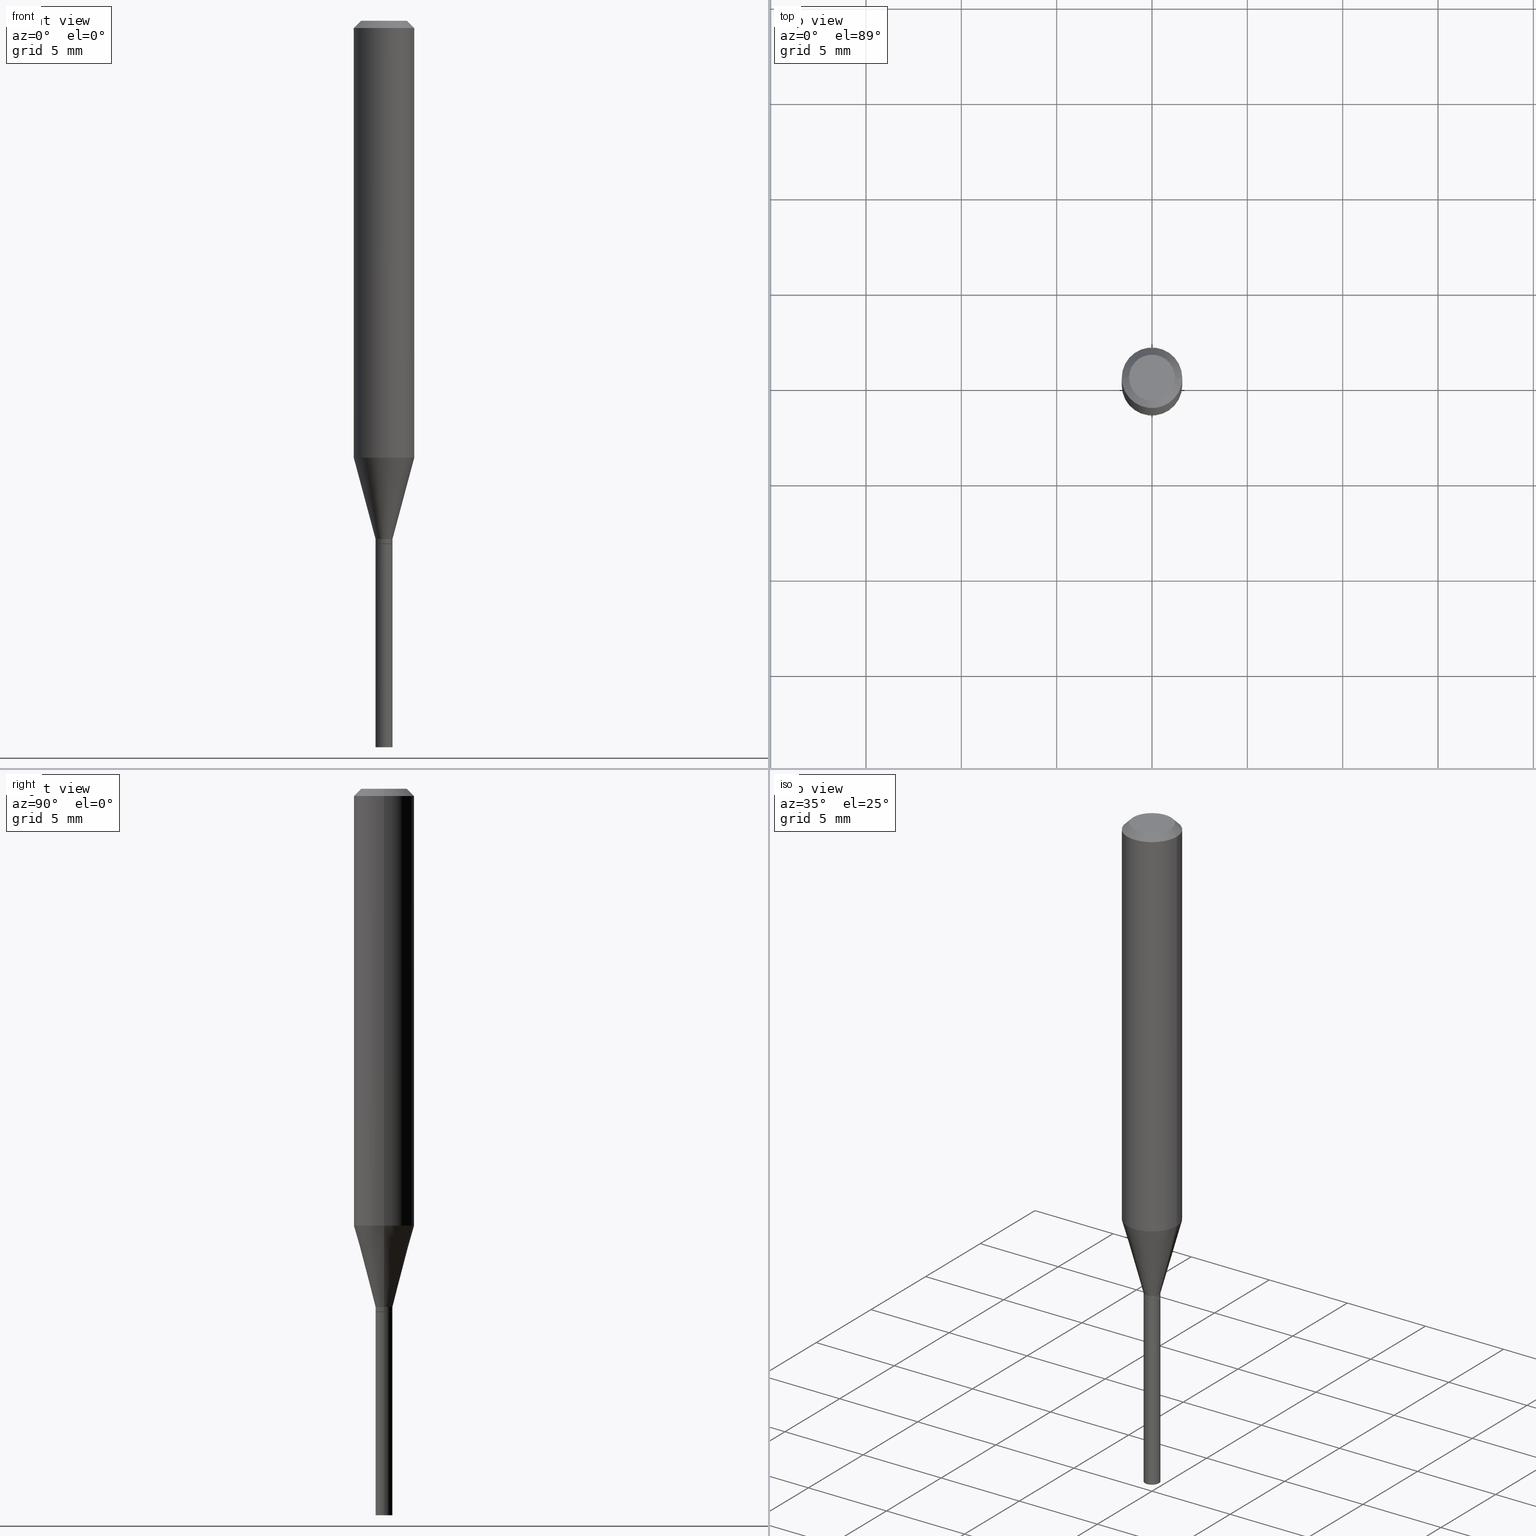
[diagram: canonical four-view strip — front | top / right | iso, engineering-drawing reading convention]
A machine part, canonical four-view strip (front | top / right | iso — engineering-drawing reading convention). The complete STEP part file that produces these views, byte-faithful:
ISO-10303-21;
HEADER;
FILE_DESCRIPTION (( 'STEP AP203' ),
    '1' );
FILE_NAME ('02699.STEP',
    '2024-03-18T21:28:36',
    ( '' ),
    ( '' ),
    'SwSTEP 2.0',
    'SolidWorks 2023',
    '' );
FILE_SCHEMA (( 'CONFIG_CONTROL_DESIGN' ));
ENDSEC;

DATA;
#1 = CARTESIAN_POINT ( 'NONE',  ( 0.06250000000000000000, -4.811533449433679005E-16, -0.01499999999999999944 ) ) ;
#2 = DIRECTION ( 'NONE',  ( 1.000000000000000000, -6.982962677686266711E-15, 0.000000000000000000 ) ) ;
#3 = LINE ( 'NONE', #144, #62 ) ;
#4 = CONICAL_SURFACE ( 'NONE', #93, 0.06250000000000000000, 0.7853981633974639331 ) ;
#5 = DIRECTION ( 'NONE',  ( -2.445468806185136597E-29, 3.491481338843145583E-15, 1.000000000000000000 ) ) ;
#6 = CC_DESIGN_APPROVAL ( #149, ( #159 ) ) ;
#7 = CARTESIAN_POINT ( 'NONE',  ( 3.668203209277705088E-31, -5.237222008264718399E-17, -0.01499999999999999944 ) ) ;
#8 = ORIENTED_EDGE ( 'NONE', *, *, #425, .F. ) ;
#9 = ADVANCED_FACE ( 'NONE', ( #310 ), #121, .T. ) ;
#10 = ORIENTED_EDGE ( 'NONE', *, *, #339, .F. ) ;
#11 = CARTESIAN_POINT ( 'NONE',  ( 2.639883576276855597E-29, -3.769054105281176877E-15, -1.079500000000000126 ) ) ;
#12 = CARTESIAN_POINT ( 'NONE',  ( 3.576687321579069994E-29, -5.368277968210015545E-15, -1.500000000000000222 ) ) ;
#13 = ORIENTED_EDGE ( 'NONE', *, *, #23, .T. ) ;
#14 = EDGE_CURVE ( 'NONE', #95, #235, #179, .T. ) ;
#15 = CARTESIAN_POINT ( 'NONE',  ( 1.145470065593040868E-44, -1.635427672643458845E-30, -4.684051019975766066E-16 ) ) ;
#16 = VERTEX_POINT ( 'NONE', #166 ) ;
#17 = CARTESIAN_POINT ( 'NONE',  ( 3.316907271900976096E-16, 0.04749999999999999362, -4.000479145938377490E-16 ) ) ;
#18 = VERTEX_POINT ( 'NONE', #451 ) ;
#19 = CARTESIAN_POINT ( 'NONE',  ( 2.639883576276855597E-29, -3.769054105281176877E-15, -1.079500000000000126 ) ) ;
#20 = EDGE_LOOP ( 'NONE', ( #13, #245, #10, #216 ) ) ;
#21 = AXIS2_PLACEMENT_3D ( 'NONE', #11, #160, #116 ) ;
#22 = ORIENTED_EDGE ( 'NONE', *, *, #190, .F. ) ;
#23 = EDGE_CURVE ( 'NONE', #165, #195, #169, .T. ) ;
#24 = DIRECTION ( 'NONE',  ( 2.438088387897960049E-29, -3.491481338843145188E-15, -1.000000000000000000 ) ) ;
#25 = CARTESIAN_POINT ( 'NONE',  ( 2.616651622618096293E-29, -3.735885032562165943E-15, -1.070000000000000062 ) ) ;
#26 = EDGE_CURVE ( 'NONE', #18, #344, #326, .T. ) ;
#27 = CARTESIAN_POINT ( 'NONE',  ( 3.668203209277705088E-31, -5.237222008264718399E-17, -0.01499999999999999944 ) ) ;
#28 = DIRECTION ( 'NONE',  ( -2.438088387897960049E-29, 3.491481338843145188E-15, 1.000000000000000000 ) ) ;
#29 = DIRECTION ( 'NONE',  ( 1.000000000000000000, -6.982962677686274599E-15, 0.000000000000000000 ) ) ;
#30 = DIRECTION ( 'NONE',  ( -2.445468806185136877E-29, 3.491481338843145188E-15, 1.000000000000000000 ) ) ;
#31 = APPLICATION_PROTOCOL_DEFINITION ( 'international standard', 'config_control_design', 1994, #393 ) ;
#32 = DIRECTION ( 'NONE',  ( -2.445468806185136877E-29, 3.491481338843145188E-15, 1.000000000000000000 ) ) ;
#33 = AXIS2_PLACEMENT_3D ( 'NONE', #316, #217, #214 ) ;
#34 = EDGE_CURVE ( 'NONE', #207, #37, #81, .T. ) ;
#35 = PERSON_AND_ORGANIZATION_ROLE ( 'design_owner' ) ;
#36 = DIRECTION ( 'NONE',  ( 1.000000000000000000, -6.982962677686267499E-15, 4.876176775795935793E-29 ) ) ;
#37 = VERTEX_POINT ( 'NONE', #432 ) ;
#38 = VECTOR ( 'NONE', #259, 39.37007874015748143 ) ;
#39 = DIRECTION ( 'NONE',  ( 1.000000000000000000, -6.982962677686253300E-15, 0.000000000000000000 ) ) ;
#40 = ORIENTED_EDGE ( 'NONE', *, *, #64, .T. ) ;
#41 = ADVANCED_FACE ( 'NONE', ( #359 ), #175, .T. ) ;
#42 = LOCAL_TIME ( 17, 28, 36.00000000000000000, #318 ) ;
#43 = CC_DESIGN_DATE_AND_TIME_ASSIGNMENT ( #465, #426, ( #364 ) ) ;
#44 = ORIENTED_EDGE ( 'NONE', *, *, #339, .T. ) ;
#45 = DIRECTION ( 'NONE',  ( 1.000000000000000000, -6.982962677686266711E-15, 0.000000000000000000 ) ) ;
#46 = ORIENTED_EDGE ( 'NONE', *, *, #431, .T. ) ;
#47 = ORIENTED_EDGE ( 'NONE', *, *, #137, .F. ) ;
#48 = CARTESIAN_POINT ( 'NONE',  ( 3.668203209277705088E-31, -5.237222008264718399E-17, -0.01499999999999999944 ) ) ;
#49 = DIRECTION ( 'NONE',  ( 1.000000000000000000, -6.982962677686265922E-15, 4.876176775795935793E-29 ) ) ;
#50 = EDGE_LOOP ( 'NONE', ( #297, #61, #342, #244 ) ) ;
#51 = AXIS2_PLACEMENT_3D ( 'NONE', #261, #5, #73 ) ;
#52 = APPROVAL_PERSON_ORGANIZATION ( #105, #149, #258 ) ;
#53 = LINE ( 'NONE', #459, #421 ) ;
#54 = ORIENTED_EDGE ( 'NONE', *, *, #440, .T. ) ;
#55 = DIRECTION ( 'NONE',  ( -1.000000000000000000, 6.982962677686265922E-15, -4.876176775795935793E-29 ) ) ;
#56 = EDGE_LOOP ( 'NONE', ( #101, #247, #240, #442 ) ) ;
#57 = LINE ( 'NONE', #102, #380 ) ;
#58 = EDGE_CURVE ( 'NONE', #37, #367, #298, .T. ) ;
#59 = CIRCLE ( 'NONE', #321, 0.06250000000000000000 ) ;
#60 = CC_DESIGN_PERSON_AND_ORGANIZATION_ASSIGNMENT ( #430, #150, ( #159 ) ) ;
#61 = ORIENTED_EDGE ( 'NONE', *, *, #137, .T. ) ;
#62 = VECTOR ( 'NONE', #30, 39.37007874015748143 ) ;
#63 = DIRECTION ( 'NONE',  ( 0.2588190451025213501, 1.565188264969621968E-15, 0.9659258262890682012 ) ) ;
#64 = EDGE_CURVE ( 'NONE', #313, #95, #3, .T. ) ;
#65 =( NAMED_UNIT ( * ) PLANE_ANGLE_UNIT ( ) SI_UNIT ( $, .RADIAN. ) );
#66 = DIRECTION ( 'NONE',  ( -2.445468806185136597E-29, 3.491481338843145583E-15, 1.000000000000000000 ) ) ;
#67 = PERSON_AND_ORGANIZATION_ROLE ( 'design_supplier' ) ;
#68 = PRODUCT_DEFINITION_FORMATION_WITH_SPECIFIED_SOURCE ( 'ANY', '', #319, .NOT_KNOWN. ) ;
#69 = ORIENTED_EDGE ( 'NONE', *, *, #411, .F. ) ;
#70 = CC_DESIGN_APPROVAL ( #382, ( #364 ) ) ;
#71 = FACE_OUTER_BOUND ( 'NONE', #212, .T. ) ;
#72 = DATE_AND_TIME ( #293, #300 ) ;
#73 = DIRECTION ( 'NONE',  ( 1.000000000000000000, -6.982962677686253300E-15, 0.000000000000000000 ) ) ;
#74 = VECTOR ( 'NONE', #32, 39.37007874015748143 ) ;
#75 = CARTESIAN_POINT ( 'NONE',  ( -0.01750000000000000167, -4.379665948349641030E-15, -1.080000000000000293 ) ) ;
#76 = CIRCLE ( 'NONE', #455, 0.01750000000000000167 ) ;
#77 = LINE ( 'NONE', #79, #38 ) ;
#78 = AXIS2_PLACEMENT_3D ( 'NONE', #94, #24, #55 ) ;
#79 = CARTESIAN_POINT ( 'NONE',  ( -0.01750000000000000167, 1.243449787580175444E-16, -8.608136407946085539E-31 ) ) ;
#80 = APPROVAL ( #291, 'UNSPECIFIED' ) ;
#81 = CIRCLE ( 'NONE', #347, 0.06250000000000000000 ) ;
#82 = ORIENTED_EDGE ( 'NONE', *, *, #184, .T. ) ;
#83 = CARTESIAN_POINT ( 'NONE',  ( 0.01750000000000006065, -3.891255952140686072E-15, -1.079500000000000126 ) ) ;
#84 = CALENDAR_DATE ( 2024, 18, 3 ) ;
#85 = APPROVAL_PERSON_ORGANIZATION ( #108, #382, #232 ) ;
#86 = EDGE_LOOP ( 'NONE', ( #44, #405, #22, #203 ) ) ;
#87 = DIRECTION ( 'NONE',  ( 1.000000000000000000, -6.982962677686270655E-15, 0.000000000000000000 ) ) ;
#88 = PERSON ( 'UNSPECIFIED', 'UNSPECIFIED', 'UNSPECIFIED', ('UNSPECIFIED'), ('UNSPECIFIED'), ('UNSPECIFIED') ) ;
#89 = DIRECTION ( 'NONE',  ( -0.2588190451025213501, 5.211531920934551042E-15, 0.9659258262890682012 ) ) ;
#90 = ORIENTED_EDGE ( 'NONE', *, *, #223, .T. ) ;
#91 = DIRECTION ( 'NONE',  ( 1.000000000000000000, -6.982962677686248567E-15, 0.000000000000000000 ) ) ;
#92 = VERTEX_POINT ( 'NONE', #330 ) ;
#93 = AXIS2_PLACEMENT_3D ( 'NONE', #27, #182, #323 ) ;
#94 = CARTESIAN_POINT ( 'NONE',  ( 1.222018468595360647E-16, 0.01749999999999623038, -1.080000000000000293 ) ) ;
#95 = VERTEX_POINT ( 'NONE', #294 ) ;
#96 = ORIENTED_EDGE ( 'NONE', *, *, #104, .T. ) ;
#97 = EDGE_CURVE ( 'NONE', #127, #235, #77, .T. ) ;
#98 = DIRECTION ( 'NONE',  ( -2.445468806185136597E-29, 3.491481338843145583E-15, 1.000000000000000000 ) ) ;
#99 = ORIENTED_EDGE ( 'NONE', *, *, #431, .F. ) ;
#100 = CONICAL_SURFACE ( 'NONE', #290, 0.01700000000000000122, 0.7853981633974718157 ) ;
#101 = ORIENTED_EDGE ( 'NONE', *, *, #249, .F. ) ;
#102 = CARTESIAN_POINT ( 'NONE',  ( -0.06250000000000000000, 3.840629472727444916E-16, -0.01499999999999999944 ) ) ;
#103 = VECTOR ( 'NONE', #392, 39.37007874015748143 ) ;
#104 = EDGE_CURVE ( 'NONE', #337, #367, #113, .T. ) ;
#105 = PERSON_AND_ORGANIZATION ( #88, #285 ) ;
#106 = APPROVAL_STATUS ( 'not_yet_approved' ) ;
#107 = DIRECTION ( 'NONE',  ( 1.000000000000000000, -6.982962677686267499E-15, 4.876176775795935793E-29 ) ) ;
#108 = PERSON_AND_ORGANIZATION ( #88, #285 ) ;
#109 = CARTESIAN_POINT ( 'NONE',  ( -0.06250000000000001388, -2.705428463951250195E-15, -0.9020577136594012391 ) ) ;
#110 = CC_DESIGN_APPROVAL ( #80, ( #68 ) ) ;
#111 = ADVANCED_FACE ( 'NONE', ( #289 ), #391, .T. ) ;
#112 = DATE_AND_TIME ( #423, #42 ) ;
#113 = LINE ( 'NONE', #1, #155 ) ;
#114 = PERSON_AND_ORGANIZATION ( #88, #285 ) ;
#115 = CARTESIAN_POINT ( 'NONE',  ( 2.616651622618096293E-29, -3.735885032562165943E-15, -1.070000000000000062 ) ) ;
#116 = DIRECTION ( 'NONE',  ( 1.000000000000000000, -6.982962677686253300E-15, 0.000000000000000000 ) ) ;
#117 = ORIENTED_EDGE ( 'NONE', *, *, #26, .F. ) ;
#118 = AXIS2_PLACEMENT_3D ( 'NONE', #301, #305, #39 ) ;
#119 = EDGE_CURVE ( 'NONE', #165, #237, #435, .T. ) ;
#120 = DIRECTION ( 'NONE',  ( -2.445468806185136597E-29, 3.491481338843145583E-15, 1.000000000000000000 ) ) ;
#121 = CYLINDRICAL_SURFACE ( 'NONE', #410, 0.06250000000000000000 ) ;
#122 = AXIS2_PLACEMENT_3D ( 'NONE', #303, #336, #401 ) ;
#123 = FACE_OUTER_BOUND ( 'NONE', #274, .T. ) ;
#124 = ORIENTED_EDGE ( 'NONE', *, *, #395, .F. ) ;
#125 = CIRCLE ( 'NONE', #354, 0.06250000000000000000 ) ;
#126 = ADVANCED_FACE ( 'NONE', ( #71 ), #100, .T. ) ;
#127 = VERTEX_POINT ( 'NONE', #185 ) ;
#128 = COORDINATED_UNIVERSAL_TIME_OFFSET ( 5, 0, .BEHIND. ) ;
#129 = EDGE_LOOP ( 'NONE', ( #47, #407, #171, #198 ) ) ;
#130 = EDGE_LOOP ( 'NONE', ( #99, #205 ) ) ;
#131 = DIRECTION ( 'NONE',  ( -2.445468806185136597E-29, 3.491481338843145583E-15, 1.000000000000000000 ) ) ;
#132 = ORIENTED_EDGE ( 'NONE', *, *, #271, .F. ) ;
#133 = ADVANCED_FACE ( 'NONE', ( #327 ), #360, .T. ) ;
#134 = AXIS2_PLACEMENT_3D ( 'NONE', #25, #98, #457 ) ;
#135 = DIRECTION ( 'NONE',  ( 1.000000000000000000, -6.982962677686266711E-15, 4.876176775795935793E-29 ) ) ;
#136 = DESIGN_CONTEXT ( 'detailed design', #393, 'design' ) ;
#137 = EDGE_CURVE ( 'NONE', #207, #453, #227, .T. ) ;
#138 = FACE_OUTER_BOUND ( 'NONE', #306, .T. ) ;
#139 = VECTOR ( 'NONE', #63, 39.37007874015747433 ) ;
#140 = APPROVAL_ROLE ( '' ) ;
#141 = LOCAL_TIME ( 17, 28, 36.00000000000000000, #128 ) ;
#142 = PERSON_AND_ORGANIZATION ( #88, #285 ) ;
#143 = CYLINDRICAL_SURFACE ( 'NONE', #329, 0.01750000000000000167 ) ;
#144 = CARTESIAN_POINT ( 'NONE',  ( 0.01750000000000000167, -1.222018468595096625E-16, 8.533309357642889039E-31 ) ) ;
#145 =( CONVERSION_BASED_UNIT ( 'INCH', #220 ) LENGTH_UNIT ( ) NAMED_UNIT ( #186 ) );
#146 = CARTESIAN_POINT ( 'NONE',  ( 2.641106310679947838E-29, -3.770799845950597592E-15, -1.080000000000000293 ) ) ;
#147 = ADVANCED_FACE ( 'NONE', ( #450 ), #153, .T. ) ;
#148 = AXIS2_PLACEMENT_3D ( 'NONE', #174, #248, #135 ) ;
#149 = APPROVAL ( #106, 'UNSPECIFIED' ) ;
#150 = PERSON_AND_ORGANIZATION_ROLE ( 'creator' ) ;
#151 = CARTESIAN_POINT ( 'NONE',  ( 0.000000000000000000, 0.000000000000000000, 0.000000000000000000 ) ) ;
#152 = AXIS2_PLACEMENT_3D ( 'NONE', #229, #66, #36 ) ;
#153 = CYLINDRICAL_SURFACE ( 'NONE', #122, 0.01750000000000000167 ) ;
#154 = DIRECTION ( 'NONE',  ( -1.000000000000000000, 6.982962677686266711E-15, 0.000000000000000000 ) ) ;
#155 = VECTOR ( 'NONE', #231, 39.37007874015748143 ) ;
#156 = DIRECTION ( 'NONE',  ( -2.445468806185136597E-29, 3.491481338843145583E-15, 1.000000000000000000 ) ) ;
#157 = ORIENTED_EDGE ( 'NONE', *, *, #345, .T. ) ;
#158 = DIRECTION ( 'NONE',  ( 1.000000000000000000, -6.982962677686274599E-15, 0.000000000000000000 ) ) ;
#159 = PRODUCT_DEFINITION ( 'UNKNOWN', '', #68, #136 ) ;
#160 = DIRECTION ( 'NONE',  ( -2.445468806185136597E-29, 3.491481338843145583E-15, 1.000000000000000000 ) ) ;
#161 = LINE ( 'NONE', #309, #428 ) ;
#162 = EDGE_LOOP ( 'NONE', ( #46, #400, #210, #368 ) ) ;
#163 = CIRCLE ( 'NONE', #134, 0.01750000000000006065 ) ;
#164 = DIRECTION ( 'NONE',  ( 1.000000000000000000, -6.982962677686274599E-15, 0.000000000000000000 ) ) ;
#165 = VERTEX_POINT ( 'NONE', #83 ) ;
#166 = CARTESIAN_POINT ( 'NONE',  ( -0.01750000000000006065, -3.158484258877699445E-15, -1.070000000000000062 ) ) ;
#167 = ORIENTED_EDGE ( 'NONE', *, *, #104, .F. ) ;
#168 = LINE ( 'NONE', #381, #139 ) ;
#169 = CIRCLE ( 'NONE', #21, 0.01750000000000006065 ) ;
#170 = EDGE_LOOP ( 'NONE', ( #269, #346 ) ) ;
#171 = ORIENTED_EDGE ( 'NONE', *, *, #58, .T. ) ;
#172 = APPROVAL_DATE_TIME ( #222, #382 ) ;
#173 = CONICAL_SURFACE ( 'NONE', #445, 0.01700000000000000122, 0.7853981633974718157 ) ;
#174 = CARTESIAN_POINT ( 'NONE',  ( 0.000000000000000000, 0.000000000000000000, 0.000000000000000000 ) ) ;
#175 = CONICAL_SURFACE ( 'NONE', #191, 0.01750000000000006065, 0.2617993877991500740 ) ;
#176 = CARTESIAN_POINT ( 'NONE',  ( 3.668203209277704895E-29, -5.237222008264718177E-15, -1.500000000000000222 ) ) ;
#177 = EDGE_CURVE ( 'NONE', #344, #18, #418, .T. ) ;
#178 = PLANE ( 'NONE',  #78 ) ;
#179 = CIRCLE ( 'NONE', #180, 0.01750000000000000167 ) ;
#180 = AXIS2_PLACEMENT_3D ( 'NONE', #273, #378, #204 ) ;
#181 = CIRCLE ( 'NONE', #196, 0.06250000000000000000 ) ;
#182 = DIRECTION ( 'NONE',  ( 2.445468806185136597E-29, -3.491481338843145583E-15, -1.000000000000000000 ) ) ;
#183 =( NAMED_UNIT ( * ) SI_UNIT ( $, .STERADIAN. ) SOLID_ANGLE_UNIT ( ) );
#184 = EDGE_CURVE ( 'NONE', #367, #453, #181, .T. ) ;
#185 = CARTESIAN_POINT ( 'NONE',  ( -0.01750000000000000167, -4.379665948349641030E-15, -1.500000000000000222 ) ) ;
#186 = DIMENSIONAL_EXPONENTS ( 1.000000000000000000, 0.000000000000000000, 0.000000000000000000, 0.000000000000000000, 0.000000000000000000, 0.000000000000000000, 0.000000000000000000 ) ;
#187 = DIRECTION ( 'NONE',  ( -2.445468806185136597E-29, 3.491481338843145583E-15, 1.000000000000000000 ) ) ;
#188 = APPROVAL_DATE_TIME ( #72, #149 ) ;
#189 = AXIS2_PLACEMENT_3D ( 'NONE', #176, #454, #91 ) ;
#190 = EDGE_CURVE ( 'NONE', #37, #207, #125, .T. ) ;
#191 = AXIS2_PLACEMENT_3D ( 'NONE', #115, #356, #324 ) ;
#192 = ORIENTED_EDGE ( 'NONE', *, *, #271, .T. ) ;
#193 = CARTESIAN_POINT ( 'NONE',  ( 2.641106310679947838E-29, -3.770799845950597592E-15, -1.080000000000000293 ) ) ;
#194 = DIRECTION ( 'NONE',  ( 1.000000000000000000, -6.982962677686267499E-15, 4.852736867747366768E-29 ) ) ;
#195 = VERTEX_POINT ( 'NONE', #438 ) ;
#196 = AXIS2_PLACEMENT_3D ( 'NONE', #48, #120, #45 ) ;
#197 = CC_DESIGN_SECURITY_CLASSIFICATION ( #364, ( #68 ) ) ;
#198 = ORIENTED_EDGE ( 'NONE', *, *, #223, .F. ) ;
#199 = ADVANCED_FACE ( 'NONE', ( #270 ), #215, .F. ) ;
#200 = CARTESIAN_POINT ( 'NONE',  ( 2.205954000132749611E-29, -3.149517673801312812E-15, -0.9020577136594012391 ) ) ;
#201 = VECTOR ( 'NONE', #394, 39.37007874015748143 ) ;
#202 = DIRECTION ( 'NONE',  ( 1.000000000000000000, -6.982962677686265922E-15, 4.876176775795936353E-29 ) ) ;
#203 = ORIENTED_EDGE ( 'NONE', *, *, #440, .F. ) ;
#204 = DIRECTION ( 'NONE',  ( 1.000000000000000000, -6.982962677686276966E-15, 0.000000000000000000 ) ) ;
#205 = ORIENTED_EDGE ( 'NONE', *, *, #389, .F. ) ;
#206 = AXIS2_PLACEMENT_3D ( 'NONE', #325, #422, #288 ) ;
#207 = VERTEX_POINT ( 'NONE', #109 ) ;
#208 = CC_DESIGN_PERSON_AND_ORGANIZATION_ASSIGNMENT ( #460, #67, ( #68 ) ) ;
#209 = DIRECTION ( 'NONE',  ( -2.445468806185136597E-29, 3.491481338843145583E-15, 1.000000000000000000 ) ) ;
#210 = ORIENTED_EDGE ( 'NONE', *, *, #14, .F. ) ;
#211 = CARTESIAN_POINT ( 'NONE',  ( 0.04749999999999999362, -4.035134999187586019E-16, -4.684051019975741414E-16 ) ) ;
#212 = EDGE_LOOP ( 'NONE', ( #351, #157, #307, #280 ) ) ;
#213 = CIRCLE ( 'NONE', #343, 0.04749999999999999362 ) ;
#214 = DIRECTION ( 'NONE',  ( 1.000000000000000000, -6.982962677686267499E-15, 4.852736867747366768E-29 ) ) ;
#215 = PLANE ( 'NONE',  #402 ) ;
#216 = ORIENTED_EDGE ( 'NONE', *, *, #119, .F. ) ;
#217 = DIRECTION ( 'NONE',  ( -2.445468806185136597E-29, 3.491481338843145583E-15, 1.000000000000000000 ) ) ;
#218 = SHAPE_DEFINITION_REPRESENTATION ( #295, #446 ) ;
#219 = APPLICATION_CONTEXT ( 'configuration controlled 3d designs of mechanical parts and assemblies' ) ;
#220 = LENGTH_MEASURE_WITH_UNIT ( LENGTH_MEASURE( 0.02539999999999999897 ), #255 );
#221 = DIRECTION ( 'NONE',  ( -2.445468806185136877E-29, 3.491481338843145188E-15, 1.000000000000000000 ) ) ;
#222 = DATE_AND_TIME ( #84, #141 ) ;
#223 = EDGE_CURVE ( 'NONE', #453, #367, #59, .T. ) ;
#224 = PERSON_AND_ORGANIZATION_ROLE ( 'classification_officer' ) ;
#225 = CALENDAR_DATE ( 2024, 18, 3 ) ;
#226 = FACE_OUTER_BOUND ( 'NONE', #56, .T. ) ;
#227 = LINE ( 'NONE', #361, #74 ) ;
#228 = APPLICATION_PROTOCOL_DEFINITION ( 'international standard', 'config_control_design', 1994, #219 ) ;
#229 = CARTESIAN_POINT ( 'NONE',  ( 0.000000000000000000, 0.000000000000000000, 0.000000000000000000 ) ) ;
#230 = MANIFOLD_SOLID_BREP ( 'Body-Move/Copy2[1]', #372 ) ;
#231 = DIRECTION ( 'NONE',  ( 0.7071067811865585639, -7.319954787623292333E-15, -0.7071067811865364705 ) ) ;
#232 = APPROVAL_ROLE ( '' ) ;
#233 = MANIFOLD_SOLID_BREP ( 'Body-Move/Copy2[2]', #264 ) ;
#234 = DIRECTION ( 'NONE',  ( -2.445468806185136597E-29, 3.491481338843145583E-15, 1.000000000000000000 ) ) ;
#235 = VERTEX_POINT ( 'NONE', #75 ) ;
#236 = ADVANCED_FACE ( 'NONE', ( #226 ), #263, .T. ) ;
#237 = VERTEX_POINT ( 'NONE', #331 ) ;
#238 = AXIS2_PLACEMENT_3D ( 'NONE', #12, #272, #49 ) ;
#239 = CARTESIAN_POINT ( 'NONE',  ( 2.641106310679947838E-29, -3.770799845950597592E-15, -1.080000000000000293 ) ) ;
#240 = ORIENTED_EDGE ( 'NONE', *, *, #119, .T. ) ;
#241 = ORIENTED_EDGE ( 'NONE', *, *, #458, .T. ) ;
#242 = DIRECTION ( 'NONE',  ( -2.445468806185136597E-29, 3.491481338843145583E-15, 1.000000000000000000 ) ) ;
#243 = LINE ( 'NONE', #373, #103 ) ;
#244 = ORIENTED_EDGE ( 'NONE', *, *, #58, .F. ) ;
#245 = ORIENTED_EDGE ( 'NONE', *, *, #249, .T. ) ;
#246 = FACE_OUTER_BOUND ( 'NONE', #50, .T. ) ;
#247 = ORIENTED_EDGE ( 'NONE', *, *, #395, .T. ) ;
#248 = DIRECTION ( 'NONE',  ( -2.445468806185136597E-29, 3.491481338843145583E-15, 1.000000000000000000 ) ) ;
#249 = EDGE_CURVE ( 'NONE', #195, #16, #253, .T. ) ;
#250 = CIRCLE ( 'NONE', #374, 0.01750000000000006065 ) ;
#251 = DIRECTION ( 'NONE',  ( -1.000000000000000000, 6.982962677686265922E-15, -4.876176775795935793E-29 ) ) ;
#252 = COORDINATED_UNIVERSAL_TIME_OFFSET ( 5, 0, .BEHIND. ) ;
#253 = LINE ( 'NONE', #384, #292 ) ;
#254 = ADVANCED_FACE ( 'NONE', ( #353 ), #4, .T. ) ;
#255 =( LENGTH_UNIT ( ) NAMED_UNIT ( * ) SI_UNIT ( $, .METRE. ) );
#256 = CARTESIAN_POINT ( 'NONE',  ( 0.01750000000000006065, -1.222018468595101062E-16, 8.533309357642917065E-31 ) ) ;
#257 = CC_DESIGN_DATE_AND_TIME_ASSIGNMENT ( #262, #286, ( #159 ) ) ;
#258 = APPROVAL_ROLE ( '' ) ;
#259 = DIRECTION ( 'NONE',  ( -2.445468806185136877E-29, 3.491481338843145188E-15, 1.000000000000000000 ) ) ;
#260 = PERSON_AND_ORGANIZATION ( #88, #285 ) ;
#261 = CARTESIAN_POINT ( 'NONE',  ( 2.616651622618096293E-29, -3.735885032562165943E-15, -1.070000000000000062 ) ) ;
#262 = DATE_AND_TIME ( #225, #281 ) ;
#263 = CYLINDRICAL_SURFACE ( 'NONE', #152, 0.01750000000000006065 ) ;
#264 = CLOSED_SHELL ( 'NONE', ( #111, #126, #254, #358, #133, #41, #9, #317, #362, #199, #315, #236 ) ) ;
#265 = ADVANCED_FACE ( 'NONE', ( #463 ), #143, .T. ) ;
#266 = CARTESIAN_POINT ( 'NONE',  ( 2.205954000132749611E-29, -3.149517673801312812E-15, -0.9020577136594012391 ) ) ;
#267 = CARTESIAN_POINT ( 'NONE',  ( 2.641106310679947838E-29, -3.770799845950597592E-15, -1.080000000000000293 ) ) ;
#268 = DIRECTION ( 'NONE',  ( 2.445468806185136597E-29, -3.491481338843145583E-15, -1.000000000000000000 ) ) ;
#269 = ORIENTED_EDGE ( 'NONE', *, *, #14, .T. ) ;
#270 = FACE_OUTER_BOUND ( 'NONE', #439, .T. ) ;
#271 = EDGE_CURVE ( 'NONE', #92, #337, #213, .T. ) ;
#272 = DIRECTION ( 'NONE',  ( -2.438088387897960049E-29, 3.491481338843145188E-15, 1.000000000000000000 ) ) ;
#273 = CARTESIAN_POINT ( 'NONE',  ( 2.641106310679947838E-29, -3.770799845950597592E-15, -1.080000000000000293 ) ) ;
#274 = EDGE_LOOP ( 'NONE', ( #167, #132, #377, #90 ) ) ;
#275 = CIRCLE ( 'NONE', #348, 0.01750000000000000167 ) ;
#276 = ORIENTED_EDGE ( 'NONE', *, *, #97, .F. ) ;
#277 = CARTESIAN_POINT ( 'NONE',  ( 2.641106310679947838E-29, -3.770799845950597592E-15, -1.080000000000000293 ) ) ;
#278 = ORIENTED_EDGE ( 'NONE', *, *, #26, .T. ) ;
#279 = FACE_OUTER_BOUND ( 'NONE', #170, .T. ) ;
#280 = ORIENTED_EDGE ( 'NONE', *, *, #458, .F. ) ;
#281 = LOCAL_TIME ( 17, 28, 36.00000000000000000, #462 ) ;
#282 = EDGE_CURVE ( 'NONE', #16, #237, #397, .T. ) ;
#283 = DIRECTION ( 'NONE',  ( -0.7071067811865585639, 2.468850131082372629E-15, -0.7071067811865364705 ) ) ;
#284 = CARTESIAN_POINT ( 'NONE',  ( 3.668203209277704895E-29, -5.237222008264718177E-15, -1.500000000000000222 ) ) ;
#285 = ORGANIZATION ( 'UNSPECIFIED', 'UNSPECIFIED', '' ) ;
#286 = DATE_TIME_ROLE ( 'creation_date' ) ;
#287 = ADVANCED_FACE ( 'NONE', ( #370 ), #335, .F. ) ;
#288 = DIRECTION ( 'NONE',  ( 1.000000000000000000, 0.000000000000000000, 0.000000000000000000 ) ) ;
#289 = FACE_OUTER_BOUND ( 'NONE', #20, .T. ) ;
#290 = AXIS2_PLACEMENT_3D ( 'NONE', #146, #387, #29 ) ;
#291 = APPROVAL_STATUS ( 'not_yet_approved' ) ;
#292 = VECTOR ( 'NONE', #221, 39.37007874015748143 ) ;
#293 = CALENDAR_DATE ( 2024, 18, 3 ) ;
#294 = CARTESIAN_POINT ( 'NONE',  ( 0.01750000000000000167, -3.893001692810107575E-15, -1.080000000000000293 ) ) ;
#295 = PRODUCT_DEFINITION_SHAPE ( 'NONE', 'NONE',  #159 ) ;
#296 = SECURITY_CLASSIFICATION_LEVEL ( 'unclassified' ) ;
#297 = ORIENTED_EDGE ( 'NONE', *, *, #190, .T. ) ;
#298 = LINE ( 'NONE', #396, #456 ) ;
#299 = DIRECTION ( 'NONE',  ( -2.445468806185136877E-29, 3.491481338843145188E-15, 1.000000000000000000 ) ) ;
#300 = LOCAL_TIME ( 17, 28, 36.00000000000000000, #322 ) ;
#301 = CARTESIAN_POINT ( 'NONE',  ( 2.616651622618096293E-29, -3.735885032562165943E-15, -1.070000000000000062 ) ) ;
#302 = EDGE_LOOP ( 'NONE', ( #437, #338, #54, #320 ) ) ;
#303 = CARTESIAN_POINT ( 'NONE',  ( 0.000000000000000000, 0.000000000000000000, 0.000000000000000000 ) ) ;
#304 = CC_DESIGN_PERSON_AND_ORGANIZATION_ASSIGNMENT ( #114, #224, ( #364 ) ) ;
#305 = DIRECTION ( 'NONE',  ( -2.445468806185136597E-29, 3.491481338843145583E-15, 1.000000000000000000 ) ) ;
#306 = EDGE_LOOP ( 'NONE', ( #192, #399 ) ) ;
#307 = ORIENTED_EDGE ( 'NONE', *, *, #23, .F. ) ;
#308 = CIRCLE ( 'NONE', #189, 0.01750000000000000167 ) ;
#309 = CARTESIAN_POINT ( 'NONE',  ( -0.01750000000000006065, -3.611540053804147906E-15, -1.070000000000000062 ) ) ;
#310 = FACE_OUTER_BOUND ( 'NONE', #129, .T. ) ;
#311 = CARTESIAN_POINT ( 'NONE',  ( 0.01700000000000000122, -3.889510211471264568E-15, -1.080000000000000293 ) ) ;
#312 = ORIENTED_EDGE ( 'NONE', *, *, #403, .F. ) ;
#313 = VERTEX_POINT ( 'NONE', #340 ) ;
#314 = AXIS2_PLACEMENT_3D ( 'NONE', #17, #376, #251 ) ;
#315 = ADVANCED_FACE ( 'NONE', ( #404 ), #173, .T. ) ;
#316 = CARTESIAN_POINT ( 'NONE',  ( 1.145470065593040868E-44, -1.635427672643458845E-30, -4.684051019975766066E-16 ) ) ;
#317 = ADVANCED_FACE ( 'NONE', ( #123 ), #341, .T. ) ;
#318 = COORDINATED_UNIVERSAL_TIME_OFFSET ( 5, 0, .BEHIND. ) ;
#319 = PRODUCT ( '02699', '02699', '', ( #352 ) ) ;
#320 = ORIENTED_EDGE ( 'NONE', *, *, #34, .F. ) ;
#321 = AXIS2_PLACEMENT_3D ( 'NONE', #386, #466, #2 ) ;
#322 = COORDINATED_UNIVERSAL_TIME_OFFSET ( 5, 0, .BEHIND. ) ;
#323 = DIRECTION ( 'NONE',  ( -1.000000000000000000, 6.982962677686266711E-15, 0.000000000000000000 ) ) ;
#324 = DIRECTION ( 'NONE',  ( 1.000000000000000000, -6.982962677686253300E-15, 0.000000000000000000 ) ) ;
#325 = CARTESIAN_POINT ( 'NONE',  ( 0.000000000000000000, 0.000000000000000000, 0.000000000000000000 ) ) ;
#326 = CIRCLE ( 'NONE', #434, 0.01700000000000000122 ) ;
#327 = FACE_OUTER_BOUND ( 'NONE', #86, .T. ) ;
#328 = CC_DESIGN_PERSON_AND_ORGANIZATION_ASSIGNMENT ( #260, #35, ( #319 ) ) ;
#329 = AXIS2_PLACEMENT_3D ( 'NONE', #365, #156, #202 ) ;
#330 = CARTESIAN_POINT ( 'NONE',  ( -0.04749999999999999362, 3.578768372314202617E-16, -4.684051019975790718E-16 ) ) ;
#331 = CARTESIAN_POINT ( 'NONE',  ( 0.01750000000000006065, -3.858086879421675926E-15, -1.070000000000000062 ) ) ;
#332 = EDGE_CURVE ( 'NONE', #16, #207, #161, .T. ) ;
#333 = EDGE_LOOP ( 'NONE', ( #276, #409, #40, #8 ) ) ;
#334 = APPROVAL_PERSON_ORGANIZATION ( #142, #80, #140 ) ;
#335 = PLANE ( 'NONE',  #238 ) ;
#336 = DIRECTION ( 'NONE',  ( -2.445468806185136597E-29, 3.491481338843145583E-15, 1.000000000000000000 ) ) ;
#337 = VERTEX_POINT ( 'NONE', #211 ) ;
#338 = ORIENTED_EDGE ( 'NONE', *, *, #282, .T. ) ;
#339 = EDGE_CURVE ( 'NONE', #237, #16, #163, .T. ) ;
#340 = CARTESIAN_POINT ( 'NONE',  ( 0.01750000000000000167, -5.359423855124228160E-15, -1.500000000000000222 ) ) ;
#341 = CONICAL_SURFACE ( 'NONE', #413, 0.06250000000000000000, 0.7853981633974639331 ) ;
#342 = ORIENTED_EDGE ( 'NONE', *, *, #184, .F. ) ;
#343 = AXIS2_PLACEMENT_3D ( 'NONE', #15, #406, #194 ) ;
#344 = VERTEX_POINT ( 'NONE', #311 ) ;
#345 = EDGE_CURVE ( 'NONE', #18, #195, #53, .T. ) ;
#346 = ORIENTED_EDGE ( 'NONE', *, *, #425, .T. ) ;
#347 = AXIS2_PLACEMENT_3D ( 'NONE', #266, #234, #464 ) ;
#348 = AXIS2_PLACEMENT_3D ( 'NONE', #284, #131, #379 ) ;
#349 = PLANE ( 'NONE',  #314 ) ;
#350 = CARTESIAN_POINT ( 'NONE',  ( 2.641106310679947838E-29, -3.770799845950597592E-15, -1.080000000000000293 ) ) ;
#351 = ORIENTED_EDGE ( 'NONE', *, *, #177, .T. ) ;
#352 = MECHANICAL_CONTEXT ( 'NONE', #219, 'mechanical' ) ;
#353 = FACE_OUTER_BOUND ( 'NONE', #369, .T. ) ;
#354 = AXIS2_PLACEMENT_3D ( 'NONE', #200, #443, #87 ) ;
#355 = CALENDAR_DATE ( 2024, 18, 3 ) ;
#356 = DIRECTION ( 'NONE',  ( -2.445468806185136597E-29, 3.491481338843145583E-15, 1.000000000000000000 ) ) ;
#357 = PERSON_AND_ORGANIZATION ( #88, #285 ) ;
#358 = ADVANCED_FACE ( 'NONE', ( #246 ), #415, .T. ) ;
#359 = FACE_OUTER_BOUND ( 'NONE', #302, .T. ) ;
#360 = CONICAL_SURFACE ( 'NONE', #51, 0.01750000000000006065, 0.2617993877991500740 ) ;
#361 = CARTESIAN_POINT ( 'NONE',  ( -0.06250000000000000000, 4.440892098500626162E-16, -3.074334431409316114E-30 ) ) ;
#362 = ADVANCED_FACE ( 'NONE', ( #138 ), #349, .F. ) ;
#363 = CC_DESIGN_PERSON_AND_ORGANIZATION_ASSIGNMENT ( #357, #429, ( #68 ) ) ;
#364 = SECURITY_CLASSIFICATION ( '', '', #296 ) ;
#365 = CARTESIAN_POINT ( 'NONE',  ( 0.000000000000000000, 0.000000000000000000, 0.000000000000000000 ) ) ;
#366 = AXIS2_PLACEMENT_3D ( 'NONE', #239, #242, #158 ) ;
#367 = VERTEX_POINT ( 'NONE', #452 ) ;
#368 = ORIENTED_EDGE ( 'NONE', *, *, #64, .F. ) ;
#369 = EDGE_LOOP ( 'NONE', ( #312, #96, #82, #69 ) ) ;
#370 = FACE_OUTER_BOUND ( 'NONE', #130, .T. ) ;
#371 = EDGE_LOOP ( 'NONE', ( #417, #278, #241, #124 ) ) ;
#372 = CLOSED_SHELL ( 'NONE', ( #147, #287, #265, #420 ) ) ;
#373 = CARTESIAN_POINT ( 'NONE',  ( 0.01700000000000000122, -3.889510211471264568E-15, -1.080000000000000293 ) ) ;
#374 = AXIS2_PLACEMENT_3D ( 'NONE', #19, #412, #419 ) ;
#375 = DIRECTION ( 'NONE',  ( -2.445468806185136597E-29, 3.491481338843145583E-15, 1.000000000000000000 ) ) ;
#376 = DIRECTION ( 'NONE',  ( 2.438088387897960049E-29, -3.491481338843145188E-15, -1.000000000000000000 ) ) ;
#377 = ORIENTED_EDGE ( 'NONE', *, *, #411, .T. ) ;
#378 = DIRECTION ( 'NONE',  ( -2.445468806185136597E-29, 3.491481338843145583E-15, 1.000000000000000000 ) ) ;
#379 = DIRECTION ( 'NONE',  ( 1.000000000000000000, -6.982962677686248567E-15, 0.000000000000000000 ) ) ;
#380 = VECTOR ( 'NONE', #283, 39.37007874015748143 ) ;
#381 = CARTESIAN_POINT ( 'NONE',  ( 0.01750000000000006065, -3.858086879421675926E-15, -1.070000000000000062 ) ) ;
#382 = APPROVAL ( #390, 'UNSPECIFIED' ) ;
#383 = AXIS2_PLACEMENT_3D ( 'NONE', #151, #187, #107 ) ;
#384 = CARTESIAN_POINT ( 'NONE',  ( -0.01750000000000006065, 1.243449787580179634E-16, -8.608136407946115316E-31 ) ) ;
#385 = APPROVAL_DATE_TIME ( #112, #80 ) ;
#386 = CARTESIAN_POINT ( 'NONE',  ( 3.668203209277705088E-31, -5.237222008264718399E-17, -0.01499999999999999944 ) ) ;
#387 = DIRECTION ( 'NONE',  ( -2.445468806185136597E-29, 3.491481338843145583E-15, 1.000000000000000000 ) ) ;
#388 =( GEOMETRIC_REPRESENTATION_CONTEXT ( 3 ) GLOBAL_UNCERTAINTY_ASSIGNED_CONTEXT ( ( #433 ) ) GLOBAL_UNIT_ASSIGNED_CONTEXT ( ( #145, #65, #183 ) ) REPRESENTATION_CONTEXT ( 'NONE', 'WORKASPACE' ) );
#389 = EDGE_CURVE ( 'NONE', #127, #313, #275, .T. ) ;
#390 = APPROVAL_STATUS ( 'not_yet_approved' ) ;
#391 = CYLINDRICAL_SURFACE ( 'NONE', #383, 0.01750000000000006065 ) ;
#392 = DIRECTION ( 'NONE',  ( 0.7071067811865642261, -2.468850131082431399E-15, 0.7071067811865309194 ) ) ;
#393 = APPLICATION_CONTEXT ( 'configuration controlled 3d designs of mechanical parts and assemblies' ) ;
#394 = DIRECTION ( 'NONE',  ( -2.445468806185136877E-29, 3.491481338843145188E-15, 1.000000000000000000 ) ) ;
#395 = EDGE_CURVE ( 'NONE', #195, #165, #250, .T. ) ;
#396 = CARTESIAN_POINT ( 'NONE',  ( 0.06250000000000000000, -4.364351673553916694E-16, 3.047610484872459871E-30 ) ) ;
#397 = CIRCLE ( 'NONE', #118, 0.01750000000000006065 ) ;
#398 = DIRECTION ( 'NONE',  ( -2.445468806185136597E-29, 3.491481338843145583E-15, 1.000000000000000000 ) ) ;
#399 = ORIENTED_EDGE ( 'NONE', *, *, #403, .T. ) ;
#400 = ORIENTED_EDGE ( 'NONE', *, *, #97, .T. ) ;
#401 = DIRECTION ( 'NONE',  ( 1.000000000000000000, -6.982962677686265922E-15, 4.876176775795936353E-29 ) ) ;
#402 = AXIS2_PLACEMENT_3D ( 'NONE', #350, #28, #424 ) ;
#403 = EDGE_CURVE ( 'NONE', #337, #92, #436, .T. ) ;
#404 = FACE_OUTER_BOUND ( 'NONE', #371, .T. ) ;
#405 = ORIENTED_EDGE ( 'NONE', *, *, #332, .T. ) ;
#406 = DIRECTION ( 'NONE',  ( -2.445468806185136597E-29, 3.491481338843145583E-15, 1.000000000000000000 ) ) ;
#407 = ORIENTED_EDGE ( 'NONE', *, *, #34, .T. ) ;
#408 = DIRECTION ( 'NONE',  ( -0.7071067811865642261, 7.493145998870414114E-15, 0.7071067811865309194 ) ) ;
#409 = ORIENTED_EDGE ( 'NONE', *, *, #389, .T. ) ;
#410 = AXIS2_PLACEMENT_3D ( 'NONE', #449, #375, #414 ) ;
#411 = EDGE_CURVE ( 'NONE', #92, #453, #57, .T. ) ;
#412 = DIRECTION ( 'NONE',  ( -2.445468806185136597E-29, 3.491481338843145583E-15, 1.000000000000000000 ) ) ;
#413 = AXIS2_PLACEMENT_3D ( 'NONE', #7, #268, #154 ) ;
#414 = DIRECTION ( 'NONE',  ( 1.000000000000000000, -6.982962677686266711E-15, 4.876176775795935793E-29 ) ) ;
#415 = CYLINDRICAL_SURFACE ( 'NONE', #148, 0.06250000000000000000 ) ;
#416 = DIRECTION ( 'NONE',  ( 1.000000000000000000, -6.982962677686276966E-15, 0.000000000000000000 ) ) ;
#417 = ORIENTED_EDGE ( 'NONE', *, *, #345, .F. ) ;
#418 = CIRCLE ( 'NONE', #366, 0.01700000000000000122 ) ;
#419 = DIRECTION ( 'NONE',  ( 1.000000000000000000, -6.982962677686253300E-15, 0.000000000000000000 ) ) ;
#420 = ADVANCED_FACE ( 'NONE', ( #279 ), #178, .F. ) ;
#421 = VECTOR ( 'NONE', #408, 39.37007874015748143 ) ;
#422 = DIRECTION ( 'NONE',  ( 0.000000000000000000, 0.000000000000000000, 1.000000000000000000 ) ) ;
#423 = CALENDAR_DATE ( 2024, 18, 3 ) ;
#424 = DIRECTION ( 'NONE',  ( 1.000000000000000000, -6.982962677686265922E-15, 4.876176775795935793E-29 ) ) ;
#425 = EDGE_CURVE ( 'NONE', #235, #95, #76, .T. ) ;
#426 = DATE_TIME_ROLE ( 'classification_date' ) ;
#427 = DIRECTION ( 'NONE',  ( 1.000000000000000000, -6.982962677686274599E-15, 0.000000000000000000 ) ) ;
#428 = VECTOR ( 'NONE', #89, 39.37007874015747433 ) ;
#429 = PERSON_AND_ORGANIZATION_ROLE ( 'creator' ) ;
#430 = PERSON_AND_ORGANIZATION ( #88, #285 ) ;
#431 = EDGE_CURVE ( 'NONE', #313, #127, #308, .T. ) ;
#432 = CARTESIAN_POINT ( 'NONE',  ( 0.06250000000000001388, -3.585952841156704481E-15, -0.9020577136594012391 ) ) ;
#433 = UNCERTAINTY_MEASURE_WITH_UNIT (LENGTH_MEASURE( 1.000000000000000082E-05 ), #145, 'distance_accuracy_value', 'NONE');
#434 = AXIS2_PLACEMENT_3D ( 'NONE', #267, #398, #427 ) ;
#435 = LINE ( 'NONE', #256, #201 ) ;
#436 = CIRCLE ( 'NONE', #33, 0.04749999999999999362 ) ;
#437 = ORIENTED_EDGE ( 'NONE', *, *, #332, .F. ) ;
#438 = CARTESIAN_POINT ( 'NONE',  ( -0.01750000000000006065, -3.644709126523158051E-15, -1.079500000000000126 ) ) ;
#439 = EDGE_LOOP ( 'NONE', ( #447, #117 ) ) ;
#440 = EDGE_CURVE ( 'NONE', #237, #37, #168, .T. ) ;
#441 = DIRECTION ( 'NONE',  ( -2.445468806185136597E-29, 3.491481338843145583E-15, 1.000000000000000000 ) ) ;
#442 = ORIENTED_EDGE ( 'NONE', *, *, #282, .F. ) ;
#443 = DIRECTION ( 'NONE',  ( -2.445468806185136597E-29, 3.491481338843145583E-15, 1.000000000000000000 ) ) ;
#444 = PRODUCT_RELATED_PRODUCT_CATEGORY ( 'detail', '', ( #319 ) ) ;
#445 = AXIS2_PLACEMENT_3D ( 'NONE', #193, #441, #164 ) ;
#446 = ADVANCED_BREP_SHAPE_REPRESENTATION ( '02699', ( #230, #233, #206 ), #388 ) ;
#447 = ORIENTED_EDGE ( 'NONE', *, *, #177, .F. ) ;
#448 = CARTESIAN_POINT ( 'NONE',  ( -0.06250000000000000000, -1.156855737091917526E-15, -0.01499999999999999944 ) ) ;
#449 = CARTESIAN_POINT ( 'NONE',  ( 0.000000000000000000, 0.000000000000000000, 0.000000000000000000 ) ) ;
#450 = FACE_OUTER_BOUND ( 'NONE', #162, .T. ) ;
#451 = CARTESIAN_POINT ( 'NONE',  ( -0.01700000000000000122, -3.647358353697269252E-15, -1.080000000000000293 ) ) ;
#452 = CARTESIAN_POINT ( 'NONE',  ( 0.06250000000000000000, -4.888073874380388472E-16, -0.01499999999999999944 ) ) ;
#453 = VERTEX_POINT ( 'NONE', #448 ) ;
#454 = DIRECTION ( 'NONE',  ( -2.445468806185136597E-29, 3.491481338843145583E-15, 1.000000000000000000 ) ) ;
#455 = AXIS2_PLACEMENT_3D ( 'NONE', #277, #209, #416 ) ;
#456 = VECTOR ( 'NONE', #299, 39.37007874015748143 ) ;
#457 = DIRECTION ( 'NONE',  ( 1.000000000000000000, -6.982962677686253300E-15, 0.000000000000000000 ) ) ;
#458 = EDGE_CURVE ( 'NONE', #344, #165, #243, .T. ) ;
#459 = CARTESIAN_POINT ( 'NONE',  ( -0.01700000000000000122, -3.650007580871381242E-15, -1.080000000000000293 ) ) ;
#460 = PERSON_AND_ORGANIZATION ( #88, #285 ) ;
#461 = LOCAL_TIME ( 17, 28, 36.00000000000000000, #252 ) ;
#462 = COORDINATED_UNIVERSAL_TIME_OFFSET ( 5, 0, .BEHIND. ) ;
#463 = FACE_OUTER_BOUND ( 'NONE', #333, .T. ) ;
#464 = DIRECTION ( 'NONE',  ( 1.000000000000000000, -6.982962677686270655E-15, 0.000000000000000000 ) ) ;
#465 = DATE_AND_TIME ( #355, #461 ) ;
#466 = DIRECTION ( 'NONE',  ( -2.445468806185136597E-29, 3.491481338843145583E-15, 1.000000000000000000 ) ) ;
ENDSEC;
END-ISO-10303-21;
